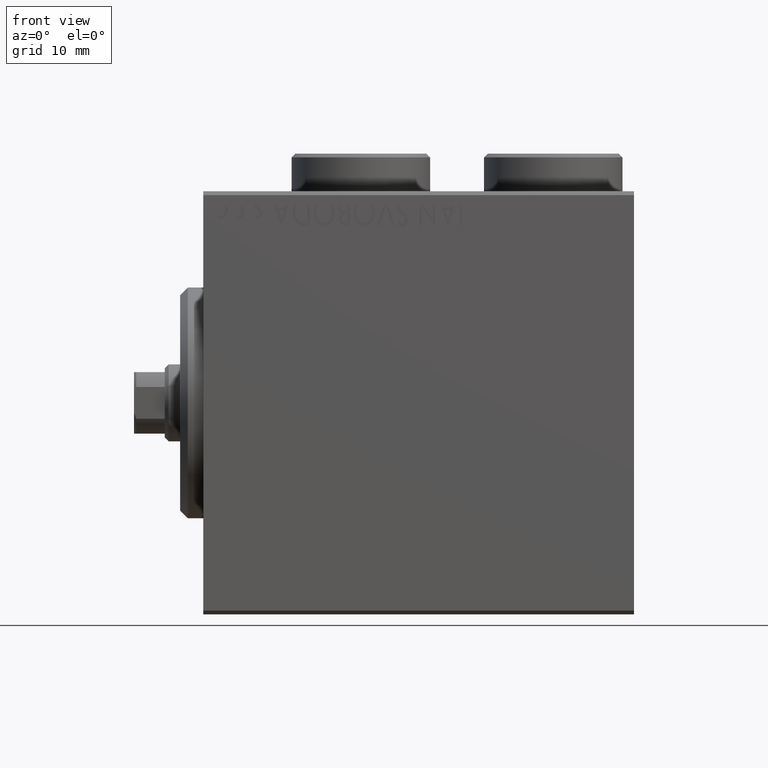
[diagram: clean part render]
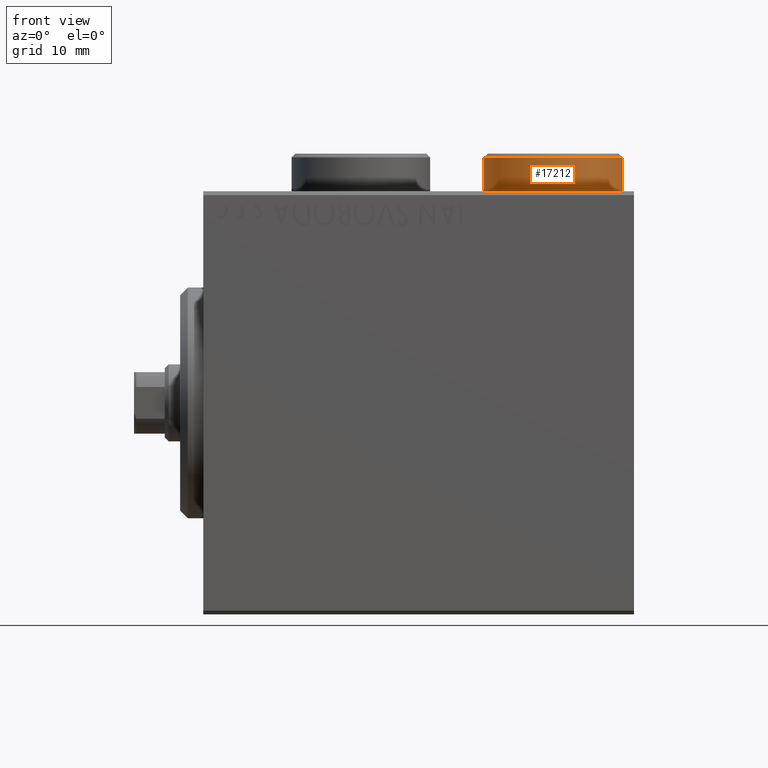
[diagram: same view with one face highlighted and labeled with its STEP entity id]
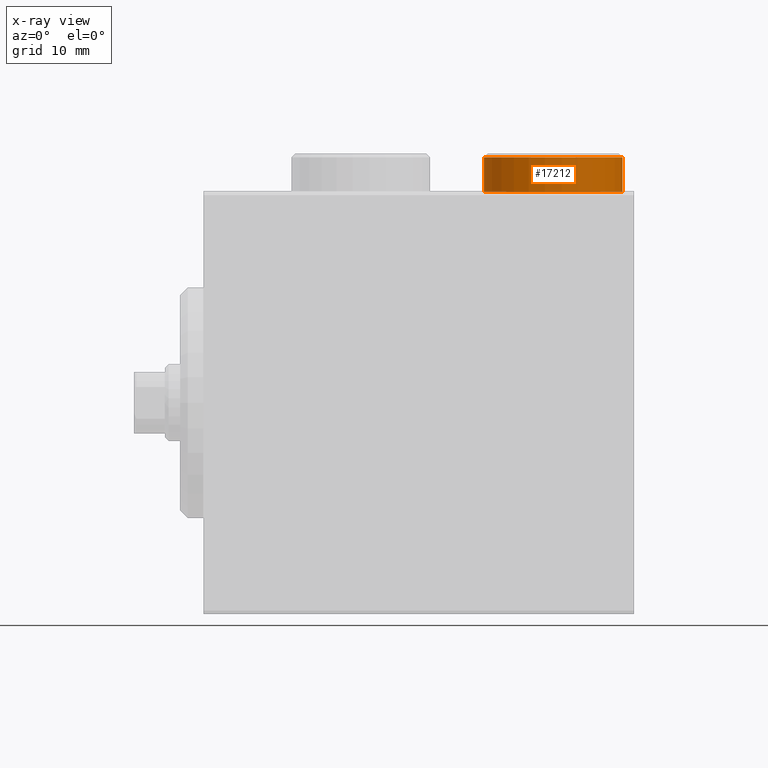
[diagram: x-ray of the same camera — body ghosted, the highlighted face saturated]
A machine part, front view. The second image highlights one B-rep face of the part: STEP entity #17212.
The next image is the same camera in x-ray: the body ghosted, the highlighted face saturated — about 1% of this face is hidden behind the body in this view.
In plain terms, the highlighted cylindrical surface (partial cylindrical patch) has radius 9 mm, axis along (-0, -0, -1).
Its self-contained STEP definition (entity closure, byte-faithful):
#394 = AXIS2_PLACEMENT_3D ( 'NONE', #25531, #18409, #32448 ) ;
#7014 = CARTESIAN_POINT ( 'NONE',  ( 9.000000000000001776, 1.102182119232617911E-15, 5.000000000000000000 ) ) ;
#7044 = EDGE_CURVE ( 'NONE', #29332, #31162, #21589, .T. ) ;
#7145 = CARTESIAN_POINT ( 'NONE',  ( -9.000000000000001776, 0.000000000000000000, 5.000000000000000000 ) ) ;
#7192 = VECTOR ( 'NONE', #7376, 1000.000000000000000 ) ;
#7376 = DIRECTION ( 'NONE',  ( -0.000000000000000000, -0.000000000000000000, -1.000000000000000000 ) ) ;
#7891 = VECTOR ( 'NONE', #45457, 1000.000000000000000 ) ;
#11034 = CARTESIAN_POINT ( 'NONE',  ( 0.000000000000000000, 0.000000000000000000, 4.500000000000006217 ) ) ;
#11336 = EDGE_CURVE ( 'NONE', #17760, #38547, #19492, .T. ) ;
#11676 = DIRECTION ( 'NONE',  ( -1.000000000000000000, 0.000000000000000000, 0.000000000000000000 ) ) ;
#13276 = ORIENTED_EDGE ( 'NONE', *, *, #7044, .T. ) ;
#13547 = ORIENTED_EDGE ( 'NONE', *, *, #11336, .T. ) ;
#13910 = EDGE_LOOP ( 'NONE', ( #24751, #13276, #16355, #13547 ) ) ;
#15213 = CARTESIAN_POINT ( 'NONE',  ( 9.000000000000001776, 1.102182119232617911E-15, 0.000000000000000000 ) ) ;
#16355 = ORIENTED_EDGE ( 'NONE', *, *, #40356, .T. ) ;
#17212 = ADVANCED_FACE ( 'NONE', ( #36069 ), #18550, .T. ) ;
#17469 = CARTESIAN_POINT ( 'NONE',  ( -9.000000000000001776, 0.000000000000000000, 4.500000000000006217 ) ) ;
#17760 = VERTEX_POINT ( 'NONE', #22986 ) ;
#18409 = DIRECTION ( 'NONE',  ( 0.000000000000000000, 0.000000000000000000, 1.000000000000000000 ) ) ;
#18550 = CYLINDRICAL_SURFACE ( 'NONE', #40988, 9.000000000000001776 ) ;
#18590 = CARTESIAN_POINT ( 'NONE',  ( 9.000000000000001776, 1.102182119232617911E-15, 4.500000000000006217 ) ) ;
#19492 = CIRCLE ( 'NONE', #394, 9.000000000000001776 ) ;
#20388 = EDGE_CURVE ( 'NONE', #29332, #38547, #21043, .T. ) ;
#21043 = LINE ( 'NONE', #7014, #7891 ) ;
#21179 = LINE ( 'NONE', #7145, #7192 ) ;
#21589 = CIRCLE ( 'NONE', #24538, 9.000000000000001776 ) ;
#21607 = DIRECTION ( 'NONE',  ( 1.000000000000000000, 0.000000000000000000, 0.000000000000000000 ) ) ;
#22986 = CARTESIAN_POINT ( 'NONE',  ( -9.000000000000001776, 0.000000000000000000, 0.000000000000000000 ) ) ;
#24538 = AXIS2_PLACEMENT_3D ( 'NONE', #11034, #28957, #21607 ) ;
#24751 = ORIENTED_EDGE ( 'NONE', *, *, #20388, .F. ) ;
#25531 = CARTESIAN_POINT ( 'NONE',  ( 0.000000000000000000, 0.000000000000000000, 0.000000000000000000 ) ) ;
#28957 = DIRECTION ( 'NONE',  ( 0.000000000000000000, 0.000000000000000000, -1.000000000000000000 ) ) ;
#29136 = CARTESIAN_POINT ( 'NONE',  ( 0.000000000000000000, 0.000000000000000000, 5.000000000000000000 ) ) ;
#29332 = VERTEX_POINT ( 'NONE', #18590 ) ;
#31162 = VERTEX_POINT ( 'NONE', #17469 ) ;
#32448 = DIRECTION ( 'NONE',  ( 1.000000000000000000, 0.000000000000000000, 0.000000000000000000 ) ) ;
#32597 = DIRECTION ( 'NONE',  ( -0.000000000000000000, -0.000000000000000000, -1.000000000000000000 ) ) ;
#36069 = FACE_OUTER_BOUND ( 'NONE', #13910, .T. ) ;
#38547 = VERTEX_POINT ( 'NONE', #15213 ) ;
#40356 = EDGE_CURVE ( 'NONE', #31162, #17760, #21179, .T. ) ;
#40988 = AXIS2_PLACEMENT_3D ( 'NONE', #29136, #32597, #11676 ) ;
#45457 = DIRECTION ( 'NONE',  ( -0.000000000000000000, -0.000000000000000000, -1.000000000000000000 ) ) ;